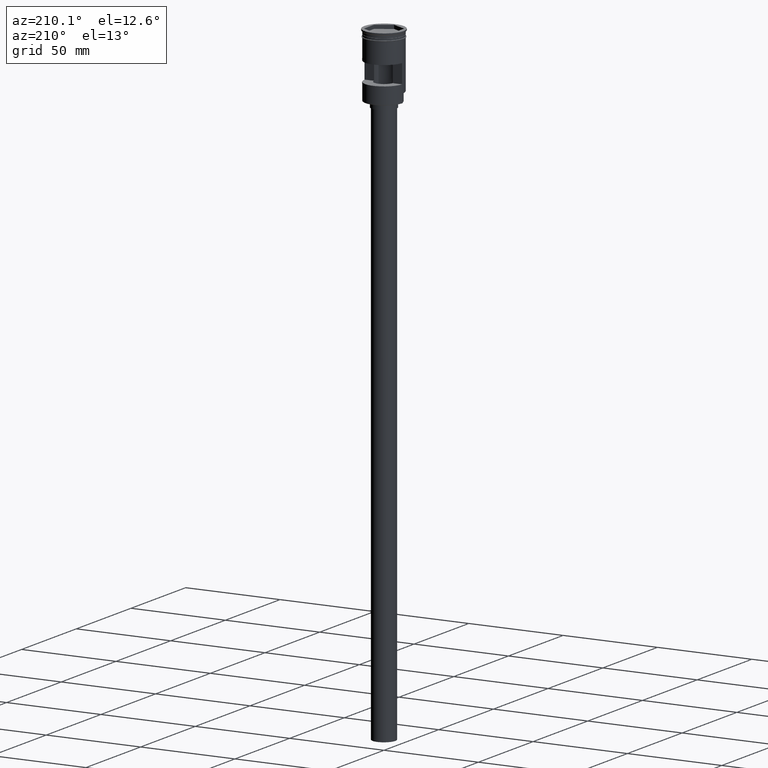
[diagram: clean part render]
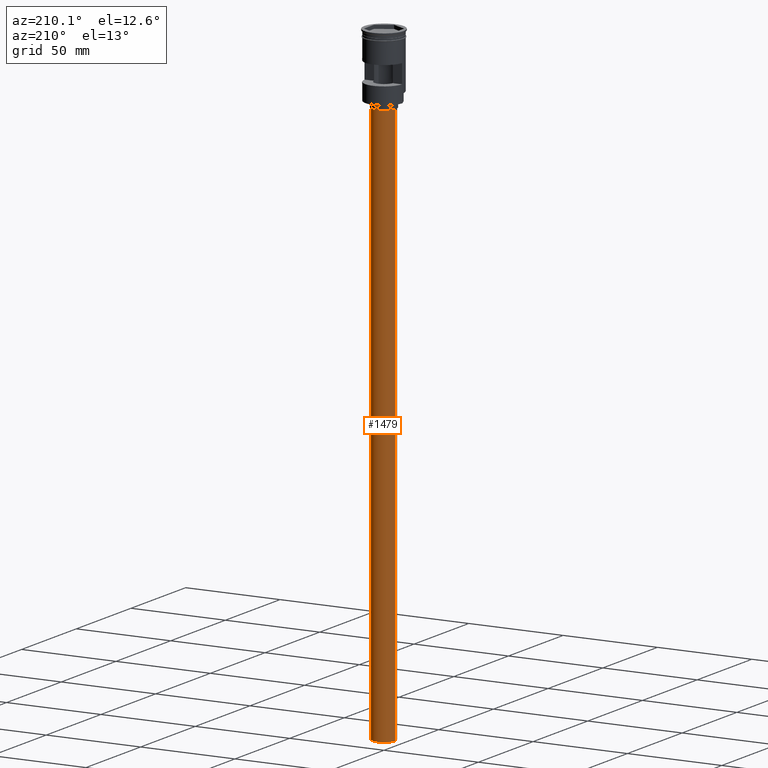
[diagram: same view with one face highlighted and labeled with its STEP entity id]
A machine part, auxiliary view. The second image highlights one B-rep face of the part: STEP entity #1479.
In plain terms, the highlighted cylindrical surface (edge-blend (fillet) strip) has radius 6 mm, axis along (-0, -0, 1).
Its self-contained STEP definition (entity closure, byte-faithful):
#69 = DIRECTION ( 'NONE',  ( 0.000000000000000000, 0.000000000000000000, -1.000000000000000000 ) ) ;
#93 = DIRECTION ( 'NONE',  ( -0.000000000000000000, -0.000000000000000000, 1.000000000000000000 ) ) ;
#105 = CARTESIAN_POINT ( 'NONE',  ( 0.000000000000000000, 0.000000000000000000, -37.00000000000000000 ) ) ;
#111 = ORIENTED_EDGE ( 'NONE', *, *, #1094, .T. ) ;
#136 = DIRECTION ( 'NONE',  ( -0.000000000000000000, -0.000000000000000000, 1.000000000000000000 ) ) ;
#138 = VERTEX_POINT ( 'NONE', #1458 ) ;
#160 = EDGE_CURVE ( 'NONE', #138, #1364, #734, .T. ) ;
#221 = VERTEX_POINT ( 'NONE', #435 ) ;
#231 = VERTEX_POINT ( 'NONE', #1325 ) ;
#241 = EDGE_LOOP ( 'NONE', ( #669, #111, #542, #965 ) ) ;
#265 = DIRECTION ( 'NONE',  ( -0.000000000000000000, -0.000000000000000000, 1.000000000000000000 ) ) ;
#300 = CIRCLE ( 'NONE', #352, 6.000000000000000888 ) ;
#352 = AXIS2_PLACEMENT_3D ( 'NONE', #105, #831, #591 ) ;
#376 = LINE ( 'NONE', #481, #636 ) ;
#407 = VECTOR ( 'NONE', #265, 1000.000000000000000 ) ;
#435 = CARTESIAN_POINT ( 'NONE',  ( 6.000000000000000888, 0.000000000000000000, -37.00000000000000000 ) ) ;
#468 = CYLINDRICAL_SURFACE ( 'NONE', #1319, 6.000000000000000888 ) ;
#481 = CARTESIAN_POINT ( 'NONE',  ( -6.000000000000000888, 7.347880794884120722E-16, -333.9999999999999432 ) ) ;
#542 = ORIENTED_EDGE ( 'NONE', *, *, #686, .T. ) ;
#591 = DIRECTION ( 'NONE',  ( -1.000000000000000000, 0.000000000000000000, 0.000000000000000000 ) ) ;
#636 = VECTOR ( 'NONE', #136, 1000.000000000000000 ) ;
#669 = ORIENTED_EDGE ( 'NONE', *, *, #160, .F. ) ;
#686 = EDGE_CURVE ( 'NONE', #231, #221, #300, .T. ) ;
#721 = DIRECTION ( 'NONE',  ( 1.000000000000000000, 0.000000000000000000, 0.000000000000000000 ) ) ;
#734 = CIRCLE ( 'NONE', #1286, 6.000000000000000888 ) ;
#831 = DIRECTION ( 'NONE',  ( 0.000000000000000000, 0.000000000000000000, -1.000000000000000000 ) ) ;
#890 = CARTESIAN_POINT ( 'NONE',  ( 6.000000000000000888, 0.000000000000000000, -333.9999999999999432 ) ) ;
#940 = DIRECTION ( 'NONE',  ( -1.000000000000000000, 0.000000000000000000, 0.000000000000000000 ) ) ;
#965 = ORIENTED_EDGE ( 'NONE', *, *, #1198, .F. ) ;
#1094 = EDGE_CURVE ( 'NONE', #138, #231, #376, .T. ) ;
#1180 = CARTESIAN_POINT ( 'NONE',  ( 6.000000000000000888, 0.000000000000000000, -333.9999999999999432 ) ) ;
#1198 = EDGE_CURVE ( 'NONE', #1364, #221, #1394, .T. ) ;
#1286 = AXIS2_PLACEMENT_3D ( 'NONE', #1557, #69, #940 ) ;
#1319 = AXIS2_PLACEMENT_3D ( 'NONE', #1346, #93, #721 ) ;
#1325 = CARTESIAN_POINT ( 'NONE',  ( -6.000000000000000888, 7.347880794884120722E-16, -37.00000000000000000 ) ) ;
#1346 = CARTESIAN_POINT ( 'NONE',  ( 0.000000000000000000, 0.000000000000000000, -333.9999999999999432 ) ) ;
#1364 = VERTEX_POINT ( 'NONE', #1180 ) ;
#1394 = LINE ( 'NONE', #890, #407 ) ;
#1458 = CARTESIAN_POINT ( 'NONE',  ( -6.000000000000000888, 7.347880794884120722E-16, -333.9999999999999432 ) ) ;
#1479 = ADVANCED_FACE ( 'NONE', ( #1591 ), #468, .T. ) ;
#1557 = CARTESIAN_POINT ( 'NONE',  ( 0.000000000000000000, 0.000000000000000000, -333.9999999999999432 ) ) ;
#1591 = FACE_OUTER_BOUND ( 'NONE', #241, .T. ) ;